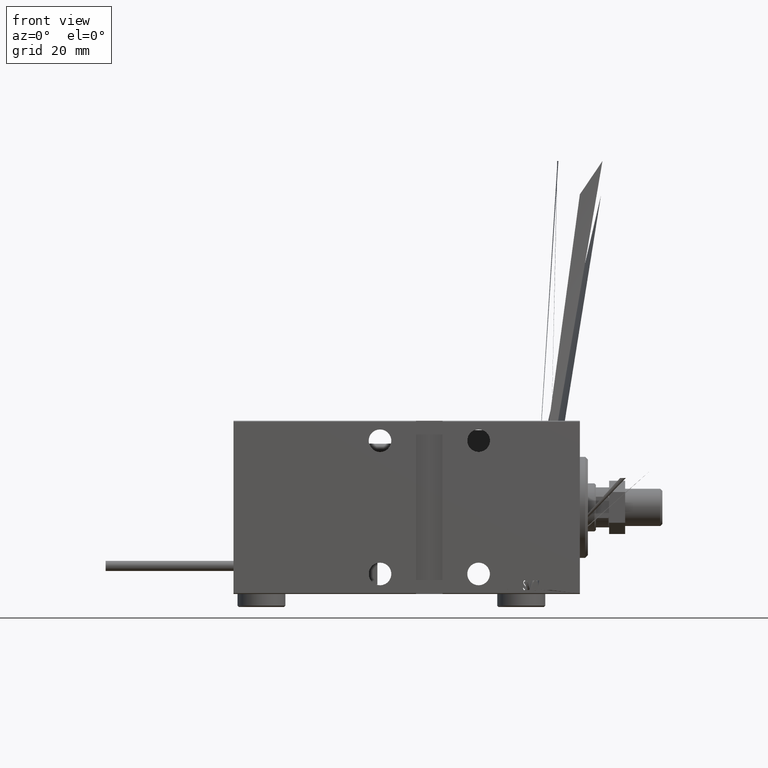
[diagram: clean part render]
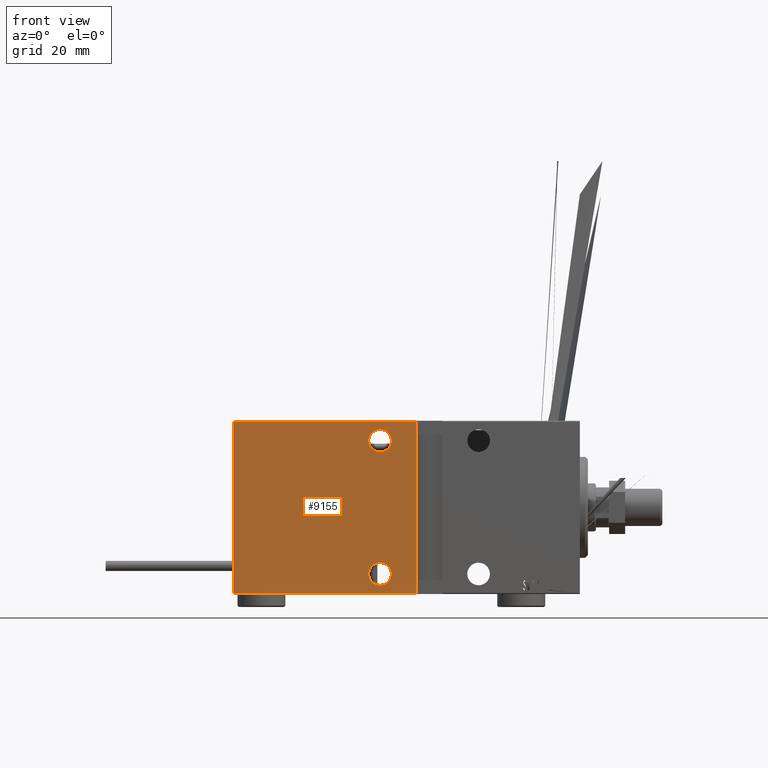
[diagram: same view with one face highlighted and labeled with its STEP entity id]
A machine part, front view. The second image highlights one B-rep face of the part: STEP entity #9155.
In plain terms, the highlighted planar face has unit normal (-0, 1, -0).
Its self-contained STEP definition (entity closure, byte-faithful):
#1011 = LINE ( 'NONE', #47794, #2586 ) ;
#2586 = VECTOR ( 'NONE', #13218, 1000.000000000000000 ) ;
#2970 = CARTESIAN_POINT ( 'NONE',  ( 75.00000000000001421, 22.50000000000001776, 25.00000000000000000 ) ) ;
#3225 = DIRECTION ( 'NONE',  ( 0.000000000000000000, 0.000000000000000000, 1.000000000000000000 ) ) ;
#3328 = CARTESIAN_POINT ( 'NONE',  ( 130.0000000000000000, 22.50000000000000355, -32.20000000000001705 ) ) ;
#3680 = CIRCLE ( 'NONE', #26107, 4.250000000000003553 ) ;
#3721 = CARTESIAN_POINT ( 'NONE',  ( 75.00000000000001421, 22.50000000000001776, 25.00000000000000000 ) ) ;
#4711 = FACE_OUTER_BOUND ( 'NONE', #24699, .T. ) ;
#6503 = CARTESIAN_POINT ( 'NONE',  ( 75.00000000000001421, 22.50000000000001776, 20.74999999999999645 ) ) ;
#7222 = AXIS2_PLACEMENT_3D ( 'NONE', #43213, #7600, #23485 ) ;
#7600 = DIRECTION ( 'NONE',  ( 0.000000000000000000, 1.000000000000000000, 0.000000000000000000 ) ) ;
#8183 = LINE ( 'NONE', #24069, #26389 ) ;
#8199 = CARTESIAN_POINT ( 'NONE',  ( 130.0000000000000000, 22.49999999999999645, 32.20000000000003126 ) ) ;
#8793 = ORIENTED_EDGE ( 'NONE', *, *, #42688, .F. ) ;
#8857 = PLANE ( 'NONE',  #36164 ) ;
#9155 = ADVANCED_FACE ( 'NONE', ( #48617, #40320, #4711 ), #8857, .F. ) ;
#9414 = LINE ( 'NONE', #17495, #45663 ) ;
#10944 = EDGE_CURVE ( 'NONE', #44909, #19574, #45318, .T. ) ;
#11620 = VERTEX_POINT ( 'NONE', #6503 ) ;
#12748 = EDGE_CURVE ( 'NONE', #19574, #44909, #25499, .T. ) ;
#12930 = EDGE_CURVE ( 'NONE', #43928, #32204, #16447, .T. ) ;
#13218 = DIRECTION ( 'NONE',  ( -1.000000000000000000, 0.000000000000000000, 0.000000000000000000 ) ) ;
#13355 = EDGE_CURVE ( 'NONE', #17453, #42156, #8183, .T. ) ;
#14763 = VERTEX_POINT ( 'NONE', #34077 ) ;
#15314 = EDGE_LOOP ( 'NONE', ( #43331, #32676 ) ) ;
#16202 = DIRECTION ( 'NONE',  ( 0.000000000000000000, 1.000000000000000000, 0.000000000000000000 ) ) ;
#16447 = LINE ( 'NONE', #33044, #22190 ) ;
#17453 = VERTEX_POINT ( 'NONE', #3328 ) ;
#17495 = CARTESIAN_POINT ( 'NONE',  ( 130.0000000000000000, 22.49999999999999645, 32.20000000000003126 ) ) ;
#17736 = ORIENTED_EDGE ( 'NONE', *, *, #13355, .F. ) ;
#18330 = CARTESIAN_POINT ( 'NONE',  ( 61.50000000000000711, 22.50000000000000000, 32.20000000000003126 ) ) ;
#19574 = VERTEX_POINT ( 'NONE', #50203 ) ;
#21310 = AXIS2_PLACEMENT_3D ( 'NONE', #50335, #38675, #46190 ) ;
#22190 = VECTOR ( 'NONE', #25275, 1000.000000000000000 ) ;
#23485 = DIRECTION ( 'NONE',  ( 0.000000000000000000, 0.000000000000000000, 1.000000000000000000 ) ) ;
#23495 = DIRECTION ( 'NONE',  ( 0.000000000000000000, 0.000000000000000000, 1.000000000000000000 ) ) ;
#24069 = CARTESIAN_POINT ( 'NONE',  ( 130.0000000000000000, 22.50000000000000355, -32.50000000000000000 ) ) ;
#24699 = EDGE_LOOP ( 'NONE', ( #17736, #40518, #24862, #49652 ) ) ;
#24862 = ORIENTED_EDGE ( 'NONE', *, *, #12930, .F. ) ;
#25275 = DIRECTION ( 'NONE',  ( -2.135044278125300850E-16, 0.000000000000000000, -1.000000000000000000 ) ) ;
#25499 = CIRCLE ( 'NONE', #7222, 4.250000000000003553 ) ;
#26107 = AXIS2_PLACEMENT_3D ( 'NONE', #3721, #16202, #23495 ) ;
#26389 = VECTOR ( 'NONE', #51322, 1000.000000000000000 ) ;
#29830 = EDGE_CURVE ( 'NONE', #43928, #42156, #9414, .T. ) ;
#32204 = VERTEX_POINT ( 'NONE', #32660 ) ;
#32660 = CARTESIAN_POINT ( 'NONE',  ( 61.49999999999999289, 22.50000000000000000, -32.20000000000001705 ) ) ;
#32676 = ORIENTED_EDGE ( 'NONE', *, *, #12748, .F. ) ;
#32915 = ORIENTED_EDGE ( 'NONE', *, *, #37457, .F. ) ;
#33026 = DIRECTION ( 'NONE',  ( 0.000000000000000000, -1.000000000000000000, -1.067522139062650425E-16 ) ) ;
#33044 = CARTESIAN_POINT ( 'NONE',  ( 61.50000000000000711, 22.50000000000000000, 32.50000000000000000 ) ) ;
#34077 = CARTESIAN_POINT ( 'NONE',  ( 75.00000000000001421, 22.50000000000001776, 29.25000000000000355 ) ) ;
#35457 = CARTESIAN_POINT ( 'NONE',  ( 75.00000000000001421, 22.50000000000001776, -20.74999999999999645 ) ) ;
#36164 = AXIS2_PLACEMENT_3D ( 'NONE', #44716, #33026, #40574 ) ;
#37457 = EDGE_CURVE ( 'NONE', #11620, #14763, #3680, .T. ) ;
#38675 = DIRECTION ( 'NONE',  ( 0.000000000000000000, 1.000000000000000000, 0.000000000000000000 ) ) ;
#39604 = DIRECTION ( 'NONE',  ( 0.000000000000000000, 1.000000000000000000, 0.000000000000000000 ) ) ;
#40320 = FACE_BOUND ( 'NONE', #44929, .T. ) ;
#40518 = ORIENTED_EDGE ( 'NONE', *, *, #48783, .T. ) ;
#40553 = AXIS2_PLACEMENT_3D ( 'NONE', #2970, #39604, #3225 ) ;
#40574 = DIRECTION ( 'NONE',  ( 0.000000000000000000, 1.067522139062650425E-16, -1.000000000000000000 ) ) ;
#42156 = VERTEX_POINT ( 'NONE', #8199 ) ;
#42688 = EDGE_CURVE ( 'NONE', #14763, #11620, #46321, .T. ) ;
#43213 = CARTESIAN_POINT ( 'NONE',  ( 75.00000000000001421, 22.50000000000001776, -25.00000000000000000 ) ) ;
#43331 = ORIENTED_EDGE ( 'NONE', *, *, #10944, .F. ) ;
#43928 = VERTEX_POINT ( 'NONE', #18330 ) ;
#44716 = CARTESIAN_POINT ( 'NONE',  ( 130.0000000000000000, 22.50000000000000355, -32.50000000000000000 ) ) ;
#44909 = VERTEX_POINT ( 'NONE', #35457 ) ;
#44929 = EDGE_LOOP ( 'NONE', ( #8793, #32915 ) ) ;
#45318 = CIRCLE ( 'NONE', #21310, 4.250000000000003553 ) ;
#45663 = VECTOR ( 'NONE', #48919, 1000.000000000000000 ) ;
#46190 = DIRECTION ( 'NONE',  ( 0.000000000000000000, 0.000000000000000000, 1.000000000000000000 ) ) ;
#46321 = CIRCLE ( 'NONE', #40553, 4.250000000000003553 ) ;
#47794 = CARTESIAN_POINT ( 'NONE',  ( 130.0000000000000000, 22.50000000000000355, -32.20000000000001705 ) ) ;
#48617 = FACE_BOUND ( 'NONE', #15314, .T. ) ;
#48783 = EDGE_CURVE ( 'NONE', #17453, #32204, #1011, .T. ) ;
#48919 = DIRECTION ( 'NONE',  ( 1.000000000000000000, 0.000000000000000000, 0.000000000000000000 ) ) ;
#49652 = ORIENTED_EDGE ( 'NONE', *, *, #29830, .T. ) ;
#50203 = CARTESIAN_POINT ( 'NONE',  ( 75.00000000000001421, 22.50000000000001776, -29.25000000000000355 ) ) ;
#50335 = CARTESIAN_POINT ( 'NONE',  ( 75.00000000000001421, 22.50000000000001776, -25.00000000000000000 ) ) ;
#51322 = DIRECTION ( 'NONE',  ( 0.000000000000000000, -1.067522139062650425E-16, 1.000000000000000000 ) ) ;